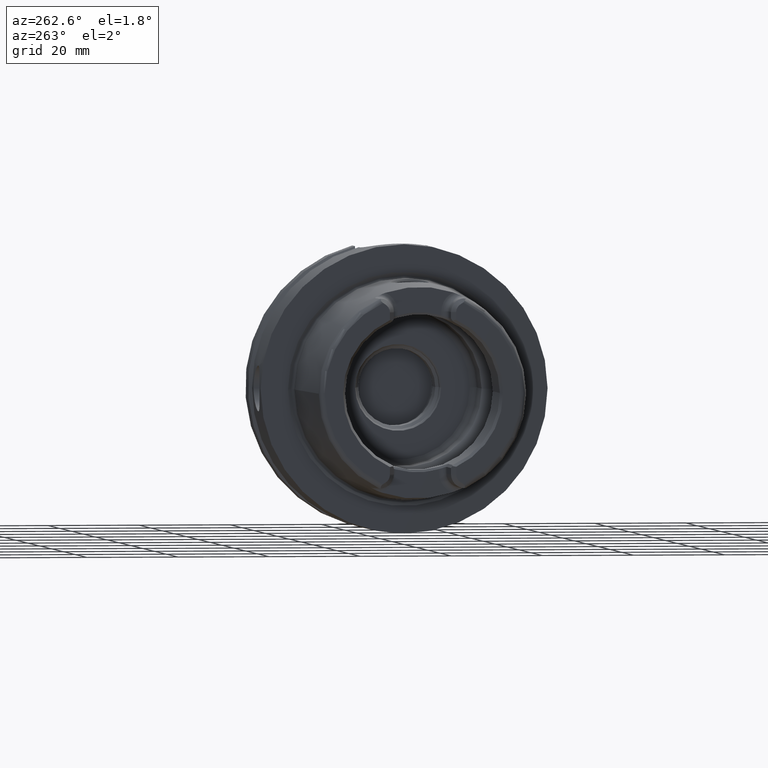
[diagram: clean part render]
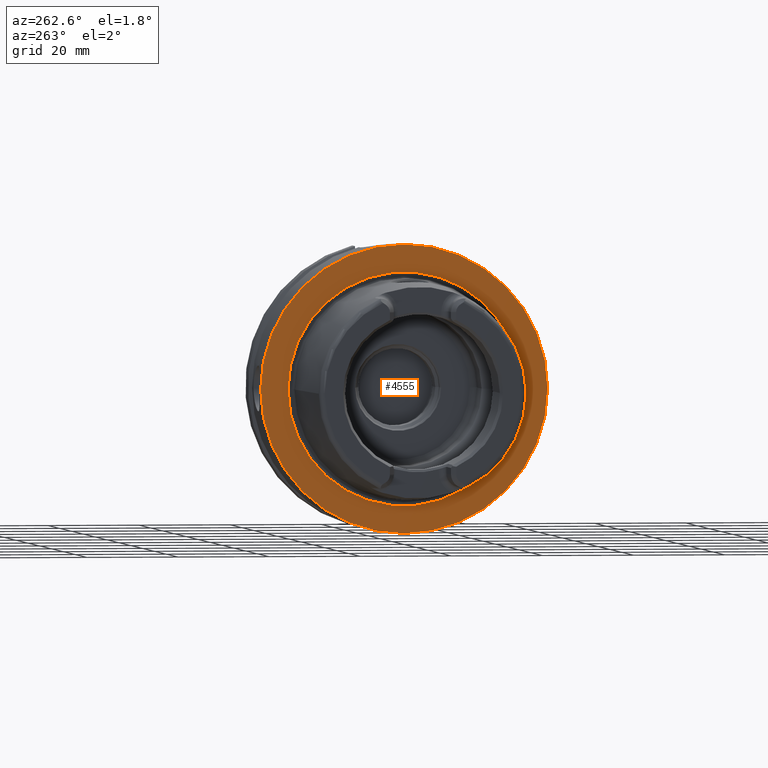
[diagram: same view with one face highlighted and labeled with its STEP entity id]
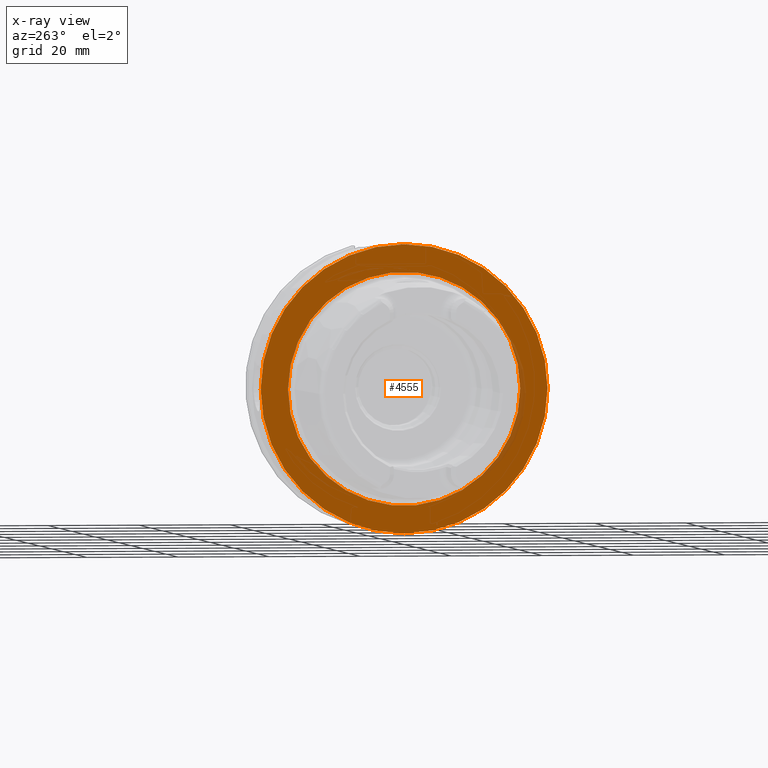
[diagram: x-ray of the same camera — body ghosted, the highlighted face saturated]
A machine part, auxiliary view. The second image highlights one B-rep face of the part: STEP entity #4555.
The next image is the same camera in x-ray: the body ghosted, the highlighted face saturated — about 4% of this face is hidden behind the body in this view.
In plain terms, the highlighted planar face has unit normal (1, 0, 0).
Its self-contained STEP definition (entity closure, byte-faithful):
#1068=CARTESIAN_POINT('',(-1.421085471520E-14,0.E0,0.E0));
#1069=DIRECTION('',(1.E0,0.E0,0.E0));
#1070=DIRECTION('',(0.E0,1.E0,0.E0));
#1071=AXIS2_PLACEMENT_3D('',#1068,#1069,#1070);
#1073=CARTESIAN_POINT('',(-1.421085471520E-14,0.E0,0.E0));
#1074=DIRECTION('',(-1.E0,0.E0,0.E0));
#1075=DIRECTION('',(0.E0,1.E0,0.E0));
#1076=AXIS2_PLACEMENT_3D('',#1073,#1074,#1075);
#1078=CARTESIAN_POINT('',(0.E0,0.E0,0.E0));
#1079=DIRECTION('',(-1.E0,0.E0,0.E0));
#1080=DIRECTION('',(0.E0,-1.E0,0.E0));
#1081=AXIS2_PLACEMENT_3D('',#1078,#1079,#1080);
#1083=CARTESIAN_POINT('',(0.E0,0.E0,0.E0));
#1084=DIRECTION('',(-1.E0,0.E0,0.E0));
#1085=DIRECTION('',(0.E0,1.E0,0.E0));
#1086=AXIS2_PLACEMENT_3D('',#1083,#1084,#1085);
#2783=CARTESIAN_POINT('',(-1.421085471520E-14,3.15E1,0.E0));
#2784=CARTESIAN_POINT('',(-1.421085471520E-14,-3.15E1,0.E0));
#2785=VERTEX_POINT('',#2783);
#2786=VERTEX_POINT('',#2784);
#2811=CARTESIAN_POINT('',(0.E0,-2.549042414966E1,0.E0));
#2812=VERTEX_POINT('',#2811);
#2813=CARTESIAN_POINT('',(0.E0,2.549042414966E1,0.E0));
#2814=VERTEX_POINT('',#2813);
#4540=CARTESIAN_POINT('',(0.E0,0.E0,0.E0));
#4541=DIRECTION('',(1.E0,0.E0,0.E0));
#4542=DIRECTION('',(0.E0,-1.E0,0.E0));
#4543=AXIS2_PLACEMENT_3D('',#4540,#4541,#4542);
#4544=PLANE('',#4543);
#4546=ORIENTED_EDGE('',*,*,#4545,.T.);
#4548=ORIENTED_EDGE('',*,*,#4547,.F.);
#4549=EDGE_LOOP('',(#4546,#4548));
#4550=FACE_OUTER_BOUND('',#4549,.F.);
#4551=ORIENTED_EDGE('',*,*,#4535,.T.);
#4552=ORIENTED_EDGE('',*,*,#4519,.T.);
#4553=EDGE_LOOP('',(#4551,#4552));
#4554=FACE_BOUND('',#4553,.F.);
#4555=ADVANCED_FACE('',(#4550,#4554),#4544,.F.);
#1072=CIRCLE('',#1071,3.15E1);
#1077=CIRCLE('',#1076,3.15E1);
#1082=CIRCLE('',#1081,2.549042414966E1);
#1087=CIRCLE('',#1086,2.549042414966E1);
#4519=EDGE_CURVE('',#2814,#2812,#1087,.T.);
#4535=EDGE_CURVE('',#2812,#2814,#1082,.T.);
#4545=EDGE_CURVE('',#2785,#2786,#1072,.T.);
#4547=EDGE_CURVE('',#2785,#2786,#1077,.T.);